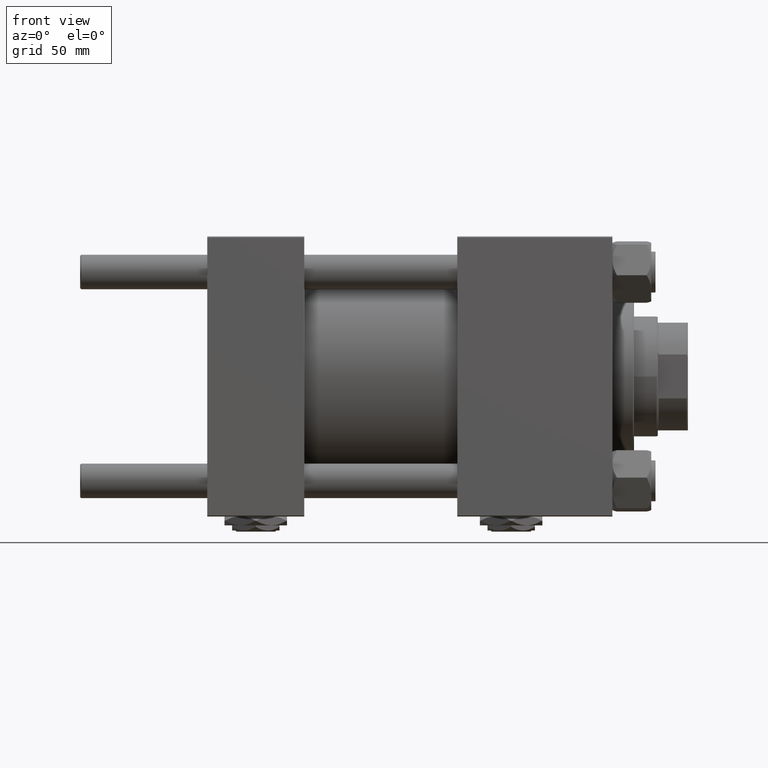
[diagram: clean part render]
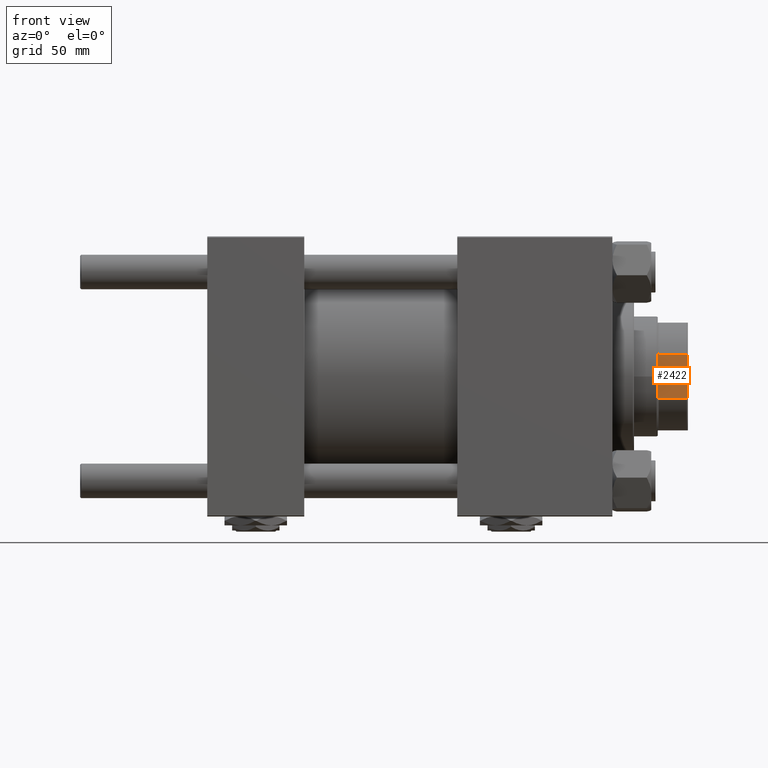
[diagram: same view with one face highlighted and labeled with its STEP entity id]
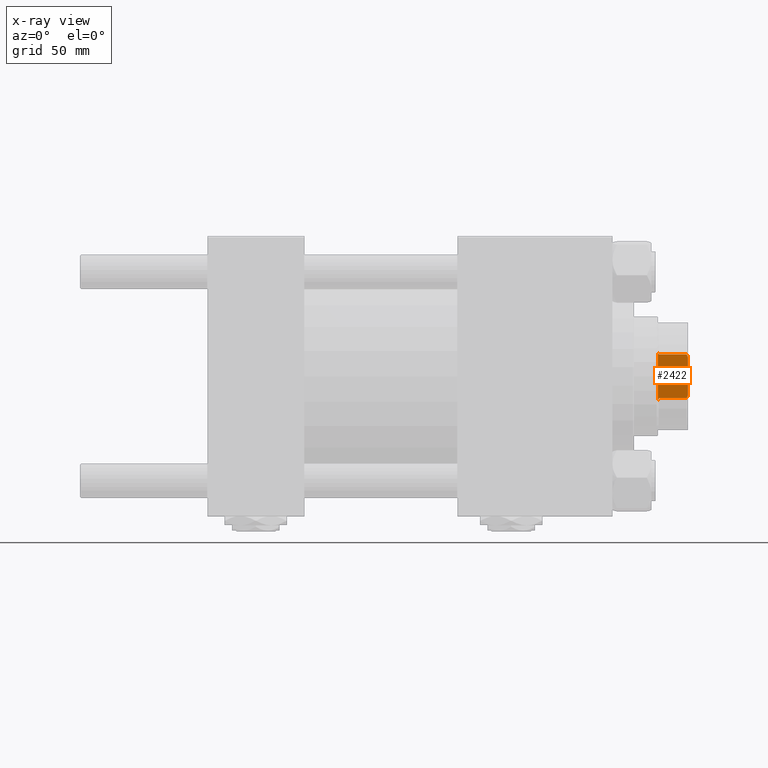
[diagram: x-ray of the same camera — body ghosted, the highlighted face saturated]
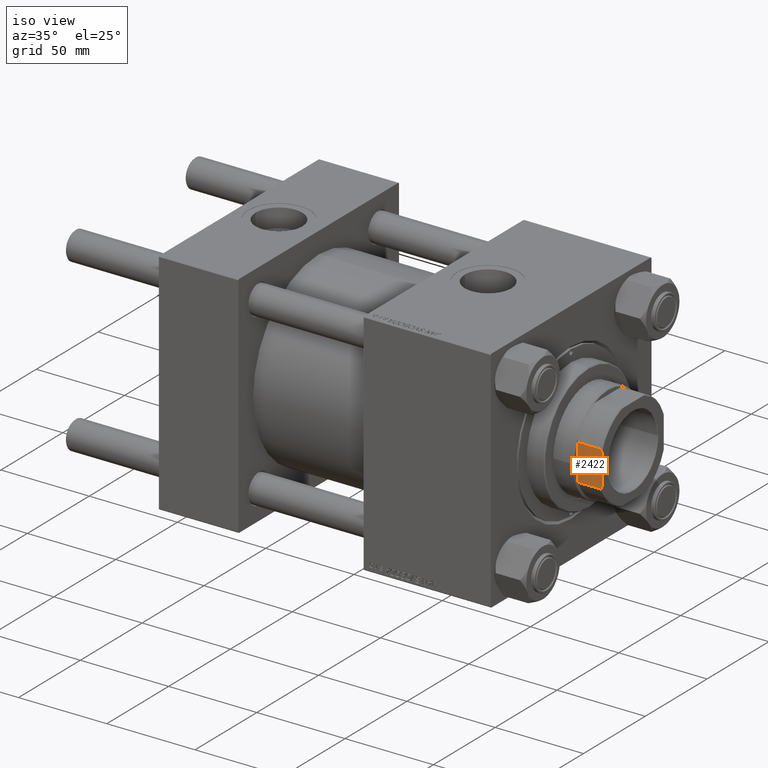
[diagram: same view with one face highlighted and labeled with its STEP entity id]
A machine part, front view. The second image highlights one B-rep face of the part: STEP entity #2422.
The next image is the same camera in x-ray: the body ghosted, the highlighted face saturated — about 0% of this face is hidden behind the body in this view.
A second angle (iso view) of the same face is appended — the face is thin or edge-on in the first view.
In plain terms, the highlighted planar face has unit normal (0, 1, 0).
Its self-contained STEP definition (entity closure, byte-faithful):
#717 = CARTESIAN_POINT ( 'NONE',  ( 24.99999999999999645, -10.19803902718556188, 177.5000000000000284 ) ) ;
#1057 = VERTEX_POINT ( 'NONE', #29332 ) ;
#1178 = VERTEX_POINT ( 'NONE', #42329 ) ;
#1614 = LINE ( 'NONE', #37740, #51662 ) ;
#2249 = EDGE_CURVE ( 'NONE', #1178, #23436, #24293, .T. ) ;
#2422 = ADVANCED_FACE ( 'NONE', ( #40390 ), #52066, .F. ) ;
#3391 = VECTOR ( 'NONE', #36527, 1000.000000000000000 ) ;
#5061 = DIRECTION ( 'NONE',  ( -0.000000000000000000, -0.000000000000000000, 1.000000000000000000 ) ) ;
#5467 = CARTESIAN_POINT ( 'NONE',  ( 25.00000000000000355, 8.789197915623548241, 178.0000000000000284 ) ) ;
#5864 = DIRECTION ( 'NONE',  ( -1.387778780781445676E-16, 1.000000000000000000, -0.000000000000000000 ) ) ;
#7037 = CARTESIAN_POINT ( 'NONE',  ( 24.99999999999999645, -10.19803902718556188, 164.5000000000000000 ) ) ;
#7101 = DIRECTION ( 'NONE',  ( -1.387778780781445676E-16, 1.000000000000000000, -0.000000000000000000 ) ) ;
#7989 = CARTESIAN_POINT ( 'NONE',  ( 25.00000000000000000, 10.19803902718555655, 164.5000000000000000 ) ) ;
#11264 = CARTESIAN_POINT ( 'NONE',  ( 25.00000000000000000, 10.19803902718555655, 177.5000000000000284 ) ) ;
#12484 = CARTESIAN_POINT ( 'NONE',  ( 25.00000000000000000, 11.03952915007668345, 164.1736838211911049 ) ) ;
#12768 = VERTEX_POINT ( 'NONE', #37775 ) ;
#13442 = CARTESIAN_POINT ( 'NONE',  ( 25.00000000000000000, 10.19803902718555655, 177.5000000000000284 ) ) ;
#15585 = ORIENTED_EDGE ( 'NONE', *, *, #2249, .F. ) ;
#16685 = CARTESIAN_POINT ( 'NONE',  ( 25.00000000000000355, -9.731776668926038099, 177.6761096935718172 ) ) ;
#17320 = B_SPLINE_CURVE_WITH_KNOTS ( 'NONE', 3,
 ( #28622, #36855, #16685, #45356 ),
 .UNSPECIFIED., .F., .F.,
 ( 4, 4 ),
 ( 1.734723475976807094E-18, 0.001494935877429980423 ),
 .UNSPECIFIED. ) ;
#17569 = VERTEX_POINT ( 'NONE', #50284 ) ;
#18713 = CARTESIAN_POINT ( 'NONE',  ( 25.00000000000000000, -11.45643923738958492, 164.0000000000000000 ) ) ;
#19811 = CARTESIAN_POINT ( 'NONE',  ( 25.00000000000000000, 25.00000000000000000, 164.0000000000000000 ) ) ;
#21892 = ORIENTED_EDGE ( 'NONE', *, *, #46507, .F. ) ;
#23436 = VERTEX_POINT ( 'NONE', #717 ) ;
#24094 = VERTEX_POINT ( 'NONE', #28598 ) ;
#24293 = LINE ( 'NONE', #40516, #3391 ) ;
#25220 = LINE ( 'NONE', #41435, #46364 ) ;
#25705 = EDGE_CURVE ( 'NONE', #40476, #12768, #26015, .T. ) ;
#26015 = B_SPLINE_CURVE_WITH_KNOTS ( 'NONE', 3,
 ( #13442, #29610, #37849, #5467 ),
 .UNSPECIFIED., .F., .F.,
 ( 4, 4 ),
 ( 0.000000000000000000, 0.001494935877429957654 ),
 .UNSPECIFIED. ) ;
#28598 = CARTESIAN_POINT ( 'NONE',  ( 25.00000000000000000, -11.45643923738958492, 164.0000000000000000 ) ) ;
#28622 = CARTESIAN_POINT ( 'NONE',  ( 25.00000000000000355, -8.789197915623526924, 178.0000000000000284 ) ) ;
#28759 = EDGE_CURVE ( 'NONE', #1178, #24094, #31518, .T. ) ;
#29332 = CARTESIAN_POINT ( 'NONE',  ( 25.00000000000000355, -8.789197915623526924, 178.0000000000000284 ) ) ;
#29610 = CARTESIAN_POINT ( 'NONE',  ( 25.00000000000000000, 9.731776668926038099, 177.6761096935718172 ) ) ;
#30982 = LINE ( 'NONE', #19811, #48350 ) ;
#31356 = DIRECTION ( 'NONE',  ( -1.000000000000000000, -1.387778780781445922E-16, 0.000000000000000000 ) ) ;
#31518 = B_SPLINE_CURVE_WITH_KNOTS ( 'NONE', 3,
 ( #7037, #50823, #43143, #18713 ),
 .UNSPECIFIED., .F., .F.,
 ( 4, 4 ),
 ( 0.1347300791724977964, 0.1360693631961248651 ),
 .UNSPECIFIED. ) ;
#32220 = AXIS2_PLACEMENT_3D ( 'NONE', #52324, #31356, #43603 ) ;
#34162 = EDGE_CURVE ( 'NONE', #17569, #52142, #49415, .T. ) ;
#35572 = CARTESIAN_POINT ( 'NONE',  ( 25.00000000000000000, 10.19803902718555655, 164.5000000000000000 ) ) ;
#35591 = ORIENTED_EDGE ( 'NONE', *, *, #36388, .T. ) ;
#36192 = EDGE_CURVE ( 'NONE', #1057, #23436, #17320, .T. ) ;
#36381 = CARTESIAN_POINT ( 'NONE',  ( 25.00000000000000000, 10.62014219435931039, 164.3405694602838025 ) ) ;
#36388 = EDGE_CURVE ( 'NONE', #24094, #17569, #30982, .T. ) ;
#36527 = DIRECTION ( 'NONE',  ( -0.000000000000000000, -0.000000000000000000, 1.000000000000000000 ) ) ;
#36855 = CARTESIAN_POINT ( 'NONE',  ( 25.00000000000000355, -9.262276112429454145, 177.8430951735361134 ) ) ;
#37740 = CARTESIAN_POINT ( 'NONE',  ( 25.00000000000000000, 25.00000000000000000, 178.0000000000000284 ) ) ;
#37775 = CARTESIAN_POINT ( 'NONE',  ( 25.00000000000000355, 8.789197915623548241, 178.0000000000000284 ) ) ;
#37849 = CARTESIAN_POINT ( 'NONE',  ( 25.00000000000000355, 9.262276112429463026, 177.8430951735361134 ) ) ;
#38941 = ORIENTED_EDGE ( 'NONE', *, *, #36192, .T. ) ;
#39607 = EDGE_LOOP ( 'NONE', ( #49649, #47386, #21892, #38941, #15585, #44044, #35591, #50008 ) ) ;
#40390 = FACE_OUTER_BOUND ( 'NONE', #39607, .T. ) ;
#40476 = VERTEX_POINT ( 'NONE', #11264 ) ;
#40516 = CARTESIAN_POINT ( 'NONE',  ( 24.99999999999999645, -10.19803902718556188, -0.001000000000001000089 ) ) ;
#40894 = EDGE_CURVE ( 'NONE', #52142, #40476, #25220, .T. ) ;
#41435 = CARTESIAN_POINT ( 'NONE',  ( 25.00000000000000000, 10.19803902718555655, -0.001000000000001000089 ) ) ;
#42329 = CARTESIAN_POINT ( 'NONE',  ( 24.99999999999999645, -10.19803902718556188, 164.5000000000000000 ) ) ;
#43143 = CARTESIAN_POINT ( 'NONE',  ( 25.00000000000000000, -11.03923433039705593, 164.1738066424182136 ) ) ;
#43603 = DIRECTION ( 'NONE',  ( 1.387778780781445922E-16, -1.000000000000000000, 0.000000000000000000 ) ) ;
#44044 = ORIENTED_EDGE ( 'NONE', *, *, #28759, .T. ) ;
#44877 = CARTESIAN_POINT ( 'NONE',  ( 25.00000000000000000, 11.45643923738959025, 164.0000000000000000 ) ) ;
#45356 = CARTESIAN_POINT ( 'NONE',  ( 24.99999999999999645, -10.19803902718556188, 177.5000000000000284 ) ) ;
#46364 = VECTOR ( 'NONE', #5061, 1000.000000000000000 ) ;
#46507 = EDGE_CURVE ( 'NONE', #1057, #12768, #1614, .T. ) ;
#47386 = ORIENTED_EDGE ( 'NONE', *, *, #25705, .T. ) ;
#48350 = VECTOR ( 'NONE', #7101, 1000.000000000000000 ) ;
#49415 = B_SPLINE_CURVE_WITH_KNOTS ( 'NONE', 3,
 ( #44877, #12484, #36381, #7989 ),
 .UNSPECIFIED., .F., .F.,
 ( 4, 4 ),
 ( 0.1613657269701884445, 0.1626835971102010281 ),
 .UNSPECIFIED. ) ;
#49649 = ORIENTED_EDGE ( 'NONE', *, *, #40894, .T. ) ;
#50008 = ORIENTED_EDGE ( 'NONE', *, *, #34162, .T. ) ;
#50284 = CARTESIAN_POINT ( 'NONE',  ( 25.00000000000000000, 11.45643923738959025, 164.0000000000000000 ) ) ;
#50823 = CARTESIAN_POINT ( 'NONE',  ( 25.00000000000000000, -10.61983482933081646, 164.3406855536377691 ) ) ;
#51662 = VECTOR ( 'NONE', #5864, 1000.000000000000000 ) ;
#52066 = PLANE ( 'NONE',  #32220 ) ;
#52142 = VERTEX_POINT ( 'NONE', #35572 ) ;
#52324 = CARTESIAN_POINT ( 'NONE',  ( 25.00000000000000000, 25.00000000000000000, 178.0000000000000284 ) ) ;